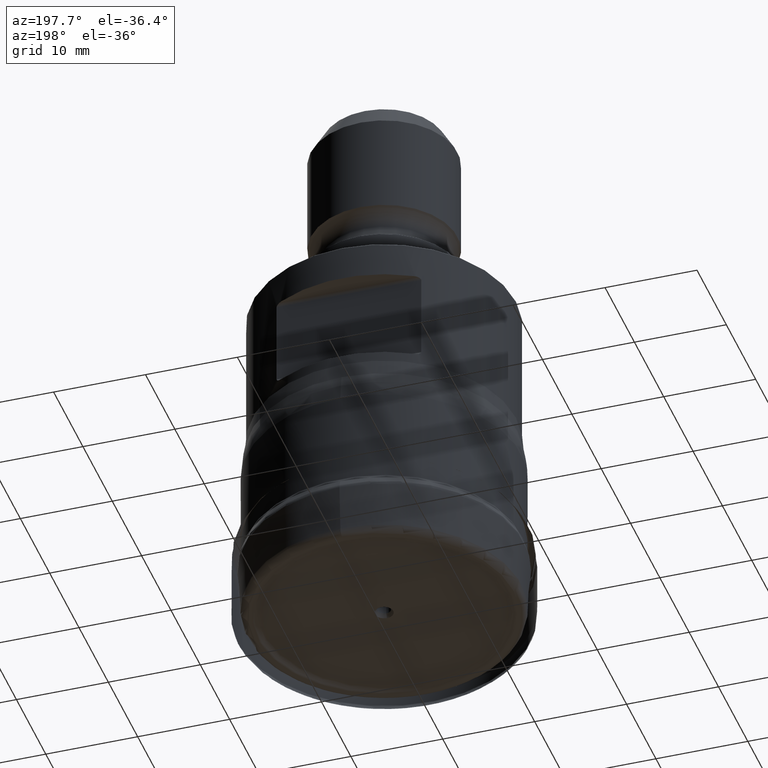
[diagram: clean part render]
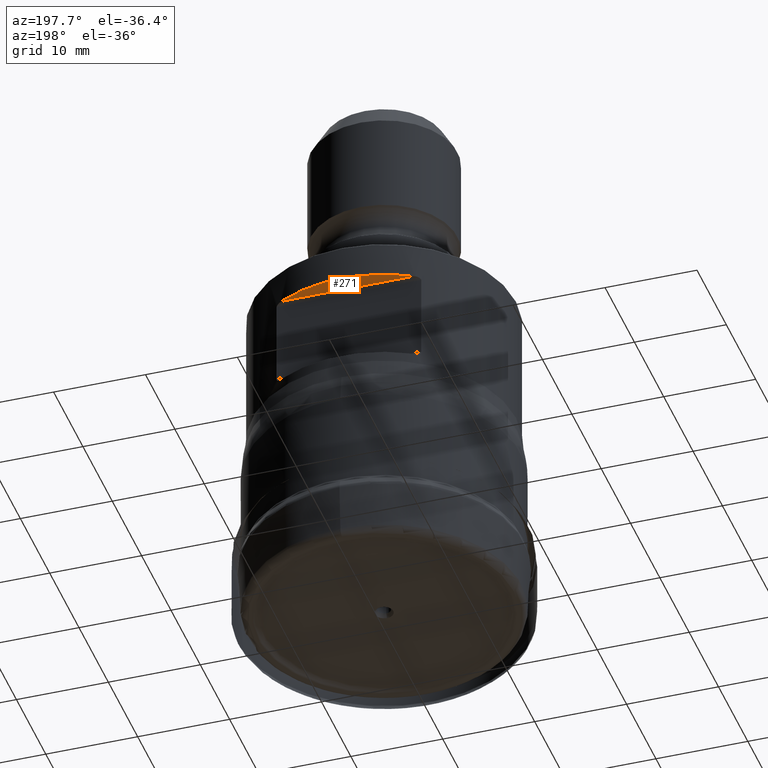
[diagram: same view with one face highlighted and labeled with its STEP entity id]
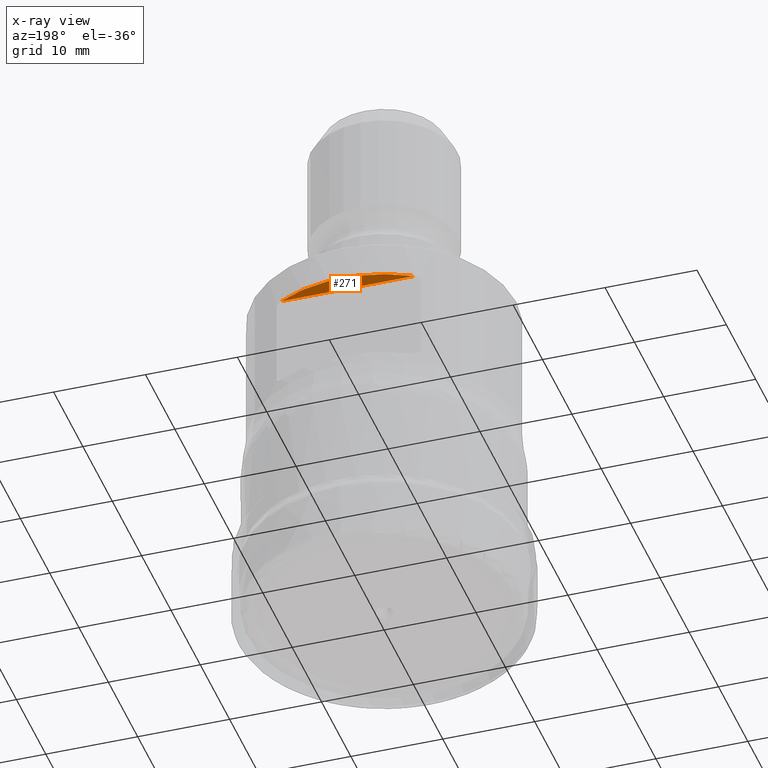
[diagram: x-ray of the same camera — body ghosted, the highlighted face saturated]
A machine part, auxiliary view. The second image highlights one B-rep face of the part: STEP entity #271.
The next image is the same camera in x-ray: the body ghosted, the highlighted face saturated — about 0% of this face is hidden behind the body in this view.
In plain terms, the highlighted planar face has unit normal (0, 0, 1).
Its self-contained STEP definition (entity closure, byte-faithful):
#165=FACE_OUTER_BOUND('',#493,.T.);
#190=LINE('',#1846,#205);
#205=VECTOR('',#1226,1.);
#271=ADVANCED_FACE('',(#165),#307,.F.);
#307=PLANE('',#1040);
#493=EDGE_LOOP('',(#644,#645));
#644=ORIENTED_EDGE('',*,*,#790,.T.);
#645=ORIENTED_EDGE('',*,*,#829,.T.);
#717=VERTEX_POINT('',#1614);
#718=VERTEX_POINT('',#1616);
#790=EDGE_CURVE('',#718,#717,#866,.T.);
#829=EDGE_CURVE('',#717,#718,#190,.T.);
#866=CIRCLE('',#985,14.351);
#985=AXIS2_PLACEMENT_3D('',#1615,#1106,#1107);
#1040=AXIS2_PLACEMENT_3D('',#1847,#1227,#1228);
#1106=DIRECTION('',(0.,-1.17145536458252E-15,-1.));
#1107=DIRECTION('',(0.,-1.,9.67025838465226E-16));
#1226=DIRECTION('',(-1.,2.1958943039393E-15,-2.5723921624059E-30));
#1227=DIRECTION('',(0.,1.17145536458252E-15,1.));
#1228=DIRECTION('',(2.34361141604467E-15,1.,-1.17267306976032E-15));
#1614=CARTESIAN_POINT('',(7.22434779063137,12.4,34.1));
#1615=CARTESIAN_POINT('',(0.,3.99466279322641E-14,34.1));
#1616=CARTESIAN_POINT('',(-7.22434779063131,12.4000000000001,34.1));
#1846=CARTESIAN_POINT('',(15.,12.4,34.1));
#1847=CARTESIAN_POINT('',(15.,12.,34.1));